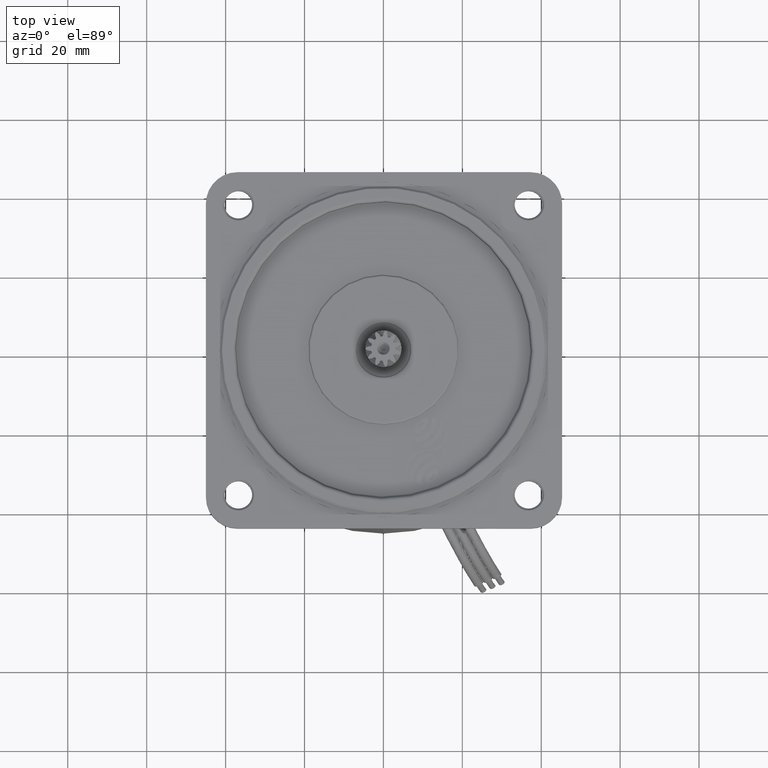
[diagram: clean part render]
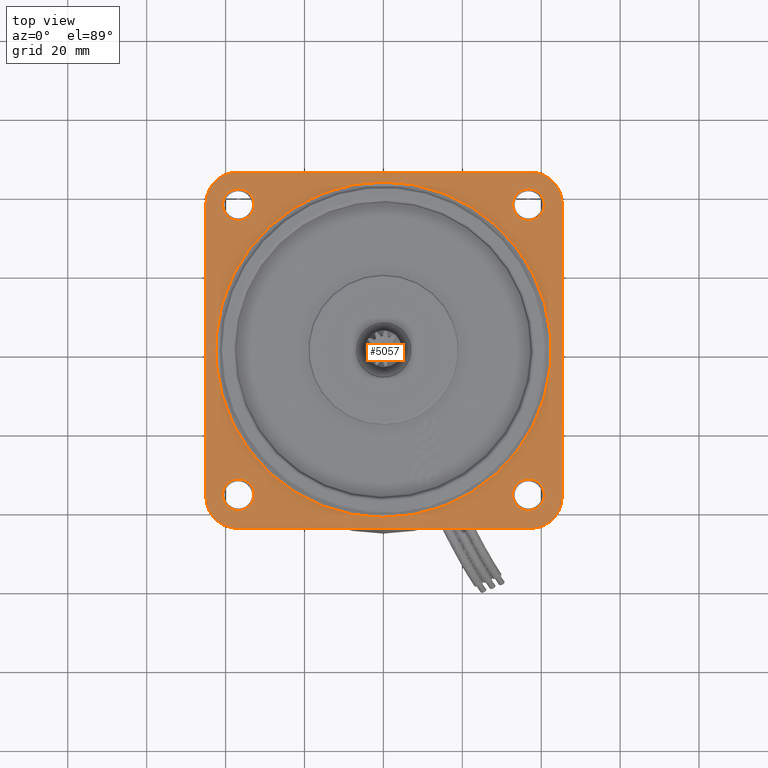
[diagram: same view with one face highlighted and labeled with its STEP entity id]
A machine part, top view. The second image highlights one B-rep face of the part: STEP entity #5057.
In plain terms, the highlighted planar face has unit normal (-0, -0, -1).
Its self-contained STEP definition (entity closure, byte-faithful):
#278 = AXIS2_PLACEMENT_3D ( 'NONE', #332, #331, #321 ) ;
#292 = PLANE ( 'NONE',  #278 ) ;
#313 = CARTESIAN_POINT ( 'NONE',  ( 105.0000000000000100, 0.0000000000000000000, 0.0000000000000000000 ) ) ;
#314 = AXIS2_PLACEMENT_3D ( 'NONE', #313, #377, #376 ) ;
#315 = CIRCLE ( 'NONE', #314, 42.50000000000000700 ) ;
#316 = DIRECTION ( 'NONE',  ( 0.0000000000000000000, 0.0000000000000000000, 1.000000000000000000 ) ) ;
#317 = DIRECTION ( 'NONE',  ( -1.000000000000000000, -0.0000000000000000000, 0.0000000000000000000 ) ) ;
#318 = CARTESIAN_POINT ( 'NONE',  ( 105.0000000000000100, -36.76955262170019300, 36.76955262170074000 ) ) ;
#319 = AXIS2_PLACEMENT_3D ( 'NONE', #318, #317, #316 ) ;
#321 = DIRECTION ( 'NONE',  ( 0.0000000000000000000, 0.0000000000000000000, 1.000000000000000000 ) ) ;
#323 = CIRCLE ( 'NONE', #354, 8.000000000000000000 ) ;
#324 = CIRCLE ( 'NONE', #319, 4.000000000000017800 ) ;
#325 = FACE_OUTER_BOUND ( 'NONE', #5141, .T. ) ;
#326 = FACE_BOUND ( 'NONE', #5167, .T. ) ;
#331 = DIRECTION ( 'NONE',  ( -1.000000000000000000, -0.0000000000000000000, 0.0000000000000000000 ) ) ;
#332 = CARTESIAN_POINT ( 'NONE',  ( 105.0000000000000100, -37.00000000000000000, 37.00000000000000700 ) ) ;
#334 = FACE_BOUND ( 'NONE', #5181, .T. ) ;
#335 = FACE_BOUND ( 'NONE', #5060, .T. ) ;
#340 = FACE_BOUND ( 'NONE', #5082, .T. ) ;
#342 = FACE_BOUND ( 'NONE', #5075, .T. ) ;
#351 = DIRECTION ( 'NONE',  ( 0.0000000000000000000, 0.0000000000000000000, 1.000000000000000000 ) ) ;
#352 = DIRECTION ( 'NONE',  ( 1.000000000000000000, 0.0000000000000000000, -0.0000000000000000000 ) ) ;
#353 = CARTESIAN_POINT ( 'NONE',  ( 105.0000000000000100, 37.29999999999998300, 37.00000000000000700 ) ) ;
#354 = AXIS2_PLACEMENT_3D ( 'NONE', #353, #352, #351 ) ;
#358 = CARTESIAN_POINT ( 'NONE',  ( 105.0000000000000100, 45.29999999999999000, -37.29999999999998300 ) ) ;
#361 = CARTESIAN_POINT ( 'NONE',  ( 105.0000000000000100, 37.29999999999998300, 45.00000000000000700 ) ) ;
#363 = CARTESIAN_POINT ( 'NONE',  ( 105.0000000000000100, 45.29999999999998300, 37.00000000000000700 ) ) ;
#376 = DIRECTION ( 'NONE',  ( 0.0000000000000000000, 0.0000000000000000000, -1.000000000000000000 ) ) ;
#377 = DIRECTION ( 'NONE',  ( 1.000000000000000000, 0.0000000000000000000, 0.0000000000000000000 ) ) ;
#385 = DIRECTION ( 'NONE',  ( 0.0000000000000000000, 0.0000000000000000000, 1.000000000000000000 ) ) ;
#386 = DIRECTION ( 'NONE',  ( 1.000000000000000000, 0.0000000000000000000, -0.0000000000000000000 ) ) ;
#387 = CARTESIAN_POINT ( 'NONE',  ( 105.0000000000000100, 37.29999999999998300, -37.29999999999998300 ) ) ;
#393 = DIRECTION ( 'NONE',  ( -0.0000000000000000000, -9.339022750884561700E-017, 1.000000000000000000 ) ) ;
#394 = VECTOR ( 'NONE', #393, 1000.000000000000000 ) ;
#395 = CARTESIAN_POINT ( 'NONE',  ( 105.0000000000000100, 45.29999999999998300, 37.00000000000000700 ) ) ;
#399 = AXIS2_PLACEMENT_3D ( 'NONE', #387, #386, #385 ) ;
#400 = LINE ( 'NONE', #395, #394 ) ;
#401 = CIRCLE ( 'NONE', #399, 8.000000000000003600 ) ;
#442 = DIRECTION ( 'NONE',  ( 0.0000000000000000000, 0.0000000000000000000, 1.000000000000000000 ) ) ;
#443 = DIRECTION ( 'NONE',  ( -1.000000000000000000, -0.0000000000000000000, 0.0000000000000000000 ) ) ;
#444 = AXIS2_PLACEMENT_3D ( 'NONE', #460, #443, #442 ) ;
#445 = CIRCLE ( 'NONE', #444, 4.000000000000017800 ) ;
#448 = DIRECTION ( 'NONE',  ( 0.0000000000000000000, 0.0000000000000000000, 1.000000000000000000 ) ) ;
#449 = DIRECTION ( 'NONE',  ( -1.000000000000000000, -0.0000000000000000000, 0.0000000000000000000 ) ) ;
#453 = AXIS2_PLACEMENT_3D ( 'NONE', #467, #449, #448 ) ;
#454 = DIRECTION ( 'NONE',  ( 0.0000000000000000000, 0.0000000000000000000, 1.000000000000000000 ) ) ;
#455 = DIRECTION ( 'NONE',  ( -1.000000000000000000, -0.0000000000000000000, 0.0000000000000000000 ) ) ;
#456 = CARTESIAN_POINT ( 'NONE',  ( 105.0000000000000100, 36.76955262170085300, 36.76955262170007200 ) ) ;
#457 = AXIS2_PLACEMENT_3D ( 'NONE', #456, #455, #454 ) ;
#458 = CIRCLE ( 'NONE', #457, 3.999999999999989800 ) ;
#460 = CARTESIAN_POINT ( 'NONE',  ( 105.0000000000000100, -36.76955262170060500, -36.76955262170033500 ) ) ;
#466 = CIRCLE ( 'NONE', #453, 4.000000000000017800 ) ;
#467 = CARTESIAN_POINT ( 'NONE',  ( 105.0000000000000100, 36.76955262170046300, -36.76955262170046300 ) ) ;
#5056 = ORIENTED_EDGE ( 'NONE', *, *, #5070, .F. ) ;
#5057 = ADVANCED_FACE ( 'NONE', ( #340, #342, #335, #326, #334, #325 ), #292, .F. ) ;
#5060 = EDGE_LOOP ( 'NONE', ( #17641, #5164 ) ) ;
#5062 = EDGE_CURVE ( 'NONE', #17480, #17476, #324, .T. ) ;
#5065 = ORIENTED_EDGE ( 'NONE', *, *, #17217, .F. ) ;
#5066 = ORIENTED_EDGE ( 'NONE', *, *, #5062, .T. ) ;
#5070 = EDGE_CURVE ( 'NONE', #17213, #17243, #315, .T. ) ;
#5073 = ORIENTED_EDGE ( 'NONE', *, *, #17507, .T. ) ;
#5075 = EDGE_LOOP ( 'NONE', ( #5073, #5066 ) ) ;
#5082 = EDGE_LOOP ( 'NONE', ( #5056, #5065 ) ) ;
#5090 = VERTEX_POINT ( 'NONE', #363 ) ;
#5096 = EDGE_CURVE ( 'NONE', #5090, #5105, #323, .T. ) ;
#5105 = VERTEX_POINT ( 'NONE', #361 ) ;
#5110 = VERTEX_POINT ( 'NONE', #358 ) ;
#5117 = EDGE_CURVE ( 'NONE', #5110, #5090, #400, .T. ) ;
#5121 = EDGE_CURVE ( 'NONE', #17750, #5110, #401, .T. ) ;
#5141 = EDGE_LOOP ( 'NONE', ( #5184, #5144, #5142, #5183, #5175, #5153, #5146, #5158 ) ) ;
#5142 = ORIENTED_EDGE ( 'NONE', *, *, #17693, .T. ) ;
#5144 = ORIENTED_EDGE ( 'NONE', *, *, #17735, .T. ) ;
#5146 = ORIENTED_EDGE ( 'NONE', *, *, #5096, .T. ) ;
#5153 = ORIENTED_EDGE ( 'NONE', *, *, #5117, .T. ) ;
#5158 = ORIENTED_EDGE ( 'NONE', *, *, #17756, .T. ) ;
#5164 = ORIENTED_EDGE ( 'NONE', *, *, #5168, .T. ) ;
#5167 = EDGE_LOOP ( 'NONE', ( #5177, #5180 ) ) ;
#5168 = EDGE_CURVE ( 'NONE', #17407, #17413, #458, .T. ) ;
#5170 = EDGE_CURVE ( 'NONE', #17266, #17276, #466, .T. ) ;
#5173 = EDGE_CURVE ( 'NONE', #17337, #17443, #445, .T. ) ;
#5175 = ORIENTED_EDGE ( 'NONE', *, *, #5121, .T. ) ;
#5177 = ORIENTED_EDGE ( 'NONE', *, *, #17467, .T. ) ;
#5178 = ORIENTED_EDGE ( 'NONE', *, *, #5170, .T. ) ;
#5180 = ORIENTED_EDGE ( 'NONE', *, *, #5173, .T. ) ;
#5181 = EDGE_LOOP ( 'NONE', ( #5182, #5178 ) ) ;
#5182 = ORIENTED_EDGE ( 'NONE', *, *, #17265, .T. ) ;
#5183 = ORIENTED_EDGE ( 'NONE', *, *, #17753, .T. ) ;
#5184 = ORIENTED_EDGE ( 'NONE', *, *, #17706, .T. ) ;
#10237 = CIRCLE ( 'NONE', #10685, 4.000000000000017800 ) ;
#10683 = CARTESIAN_POINT ( 'NONE',  ( 105.0000000000000100, -36.76955262170060500, -36.76955262170033500 ) ) ;
#10685 = AXIS2_PLACEMENT_3D ( 'NONE', #10683, #11622, #11845 ) ;
#11324 = CARTESIAN_POINT ( 'NONE',  ( 105.0000000000000100, 0.0000000000000000000, -42.50000000000000700 ) ) ;
#11622 = DIRECTION ( 'NONE',  ( -1.000000000000000000, -0.0000000000000000000, 0.0000000000000000000 ) ) ;
#11634 = DIRECTION ( 'NONE',  ( 0.0000000000000000000, 0.0000000000000000000, -1.000000000000000000 ) ) ;
#11635 = DIRECTION ( 'NONE',  ( 1.000000000000000000, 0.0000000000000000000, 0.0000000000000000000 ) ) ;
#11636 = CARTESIAN_POINT ( 'NONE',  ( 105.0000000000000100, 0.0000000000000000000, 0.0000000000000000000 ) ) ;
#11637 = AXIS2_PLACEMENT_3D ( 'NONE', #11636, #11635, #11634 ) ;
#11647 = CIRCLE ( 'NONE', #11637, 42.50000000000000700 ) ;
#11713 = CARTESIAN_POINT ( 'NONE',  ( 105.0000000000000100, 5.204748896376252500E-015, 42.50000000000000700 ) ) ;
#11722 = DIRECTION ( 'NONE',  ( 0.0000000000000000000, 0.0000000000000000000, 1.000000000000000000 ) ) ;
#11723 = AXIS2_PLACEMENT_3D ( 'NONE', #11735, #11726, #11722 ) ;
#11726 = DIRECTION ( 'NONE',  ( -1.000000000000000000, -0.0000000000000000000, 0.0000000000000000000 ) ) ;
#11728 = CARTESIAN_POINT ( 'NONE',  ( 105.0000000000000100, 36.76955262170046300, -32.76955262170044800 ) ) ;
#11731 = CIRCLE ( 'NONE', #11723, 4.000000000000017800 ) ;
#11735 = CARTESIAN_POINT ( 'NONE',  ( 105.0000000000000100, 36.76955262170046300, -36.76955262170046300 ) ) ;
#11768 = CARTESIAN_POINT ( 'NONE',  ( 105.0000000000000100, 36.76955262170046300, -40.76955262170048400 ) ) ;
#11819 = CARTESIAN_POINT ( 'NONE',  ( 105.0000000000000100, -36.76955262170060500, -32.76955262170031300 ) ) ;
#11845 = DIRECTION ( 'NONE',  ( 0.0000000000000000000, 0.0000000000000000000, 1.000000000000000000 ) ) ;
#12000 = DIRECTION ( 'NONE',  ( 0.0000000000000000000, 0.0000000000000000000, 1.000000000000000000 ) ) ;
#12001 = DIRECTION ( 'NONE',  ( -1.000000000000000000, -0.0000000000000000000, 0.0000000000000000000 ) ) ;
#12002 = AXIS2_PLACEMENT_3D ( 'NONE', #12004, #12001, #12000 ) ;
#12004 = CARTESIAN_POINT ( 'NONE',  ( 105.0000000000000100, 36.76955262170085300, 36.76955262170007200 ) ) ;
#12014 = CARTESIAN_POINT ( 'NONE',  ( 105.0000000000000100, 36.76955262170085300, 32.76955262170007900 ) ) ;
#12015 = CIRCLE ( 'NONE', #12002, 3.999999999999989800 ) ;
#12016 = CARTESIAN_POINT ( 'NONE',  ( 105.0000000000000100, 36.76955262170085300, 40.76955262170005800 ) ) ;
#12068 = CARTESIAN_POINT ( 'NONE',  ( 105.0000000000000100, -36.76955262170060500, -40.76955262170034900 ) ) ;
#12142 = CIRCLE ( 'NONE', #12213, 4.000000000000017800 ) ;
#12145 = CARTESIAN_POINT ( 'NONE',  ( 105.0000000000000100, -36.76955262170019300, 32.76955262170071800 ) ) ;
#12152 = CARTESIAN_POINT ( 'NONE',  ( 105.0000000000000100, -36.76955262170019300, 40.76955262170075400 ) ) ;
#12202 = DIRECTION ( 'NONE',  ( 0.0000000000000000000, 0.0000000000000000000, 1.000000000000000000 ) ) ;
#12203 = DIRECTION ( 'NONE',  ( -1.000000000000000000, -0.0000000000000000000, 0.0000000000000000000 ) ) ;
#12204 = CARTESIAN_POINT ( 'NONE',  ( 105.0000000000000100, -36.76955262170019300, 36.76955262170074000 ) ) ;
#12213 = AXIS2_PLACEMENT_3D ( 'NONE', #12204, #12203, #12202 ) ;
#13623 = DIRECTION ( 'NONE',  ( 0.0000000000000000000, 0.0000000000000000000, -1.000000000000000000 ) ) ;
#13624 = DIRECTION ( 'NONE',  ( 1.000000000000000000, 0.0000000000000000000, 0.0000000000000000000 ) ) ;
#13625 = AXIS2_PLACEMENT_3D ( 'NONE', #13628, #13624, #13623 ) ;
#13626 = CIRCLE ( 'NONE', #13625, 8.000000000000000000 ) ;
#13628 = CARTESIAN_POINT ( 'NONE',  ( 105.0000000000000100, -37.00000000000000000, -37.29999999999998300 ) ) ;
#13638 = CARTESIAN_POINT ( 'NONE',  ( 105.0000000000000100, -45.00000000000000000, -37.29999999999998300 ) ) ;
#13659 = CARTESIAN_POINT ( 'NONE',  ( 105.0000000000000100, -37.00000000000000000, 37.00000000000000700 ) ) ;
#13660 = CIRCLE ( 'NONE', #13829, 8.000000000000000000 ) ;
#13661 = DIRECTION ( 'NONE',  ( 1.000000000000000000, 0.0000000000000000000, -0.0000000000000000000 ) ) ;
#13823 = CARTESIAN_POINT ( 'NONE',  ( 105.0000000000000100, -45.00000000000000000, 36.99999999999995000 ) ) ;
#13824 = CARTESIAN_POINT ( 'NONE',  ( 105.0000000000000100, -36.99999999999994300, 45.00000000000000700 ) ) ;
#13828 = DIRECTION ( 'NONE',  ( 0.0000000000000000000, 0.0000000000000000000, 1.000000000000000000 ) ) ;
#13829 = AXIS2_PLACEMENT_3D ( 'NONE', #13659, #13661, #13828 ) ;
#13953 = CARTESIAN_POINT ( 'NONE',  ( 105.0000000000000100, -37.00000000000000000, -45.29999999999998300 ) ) ;
#13954 = CARTESIAN_POINT ( 'NONE',  ( 105.0000000000000100, 37.29999999999998300, -45.29999999999998300 ) ) ;
#13957 = CARTESIAN_POINT ( 'NONE',  ( 105.0000000000000100, -45.00000000000000000, 36.99999999999995000 ) ) ;
#13985 = DIRECTION ( 'NONE',  ( 0.0000000000000000000, 1.000000000000000000, 0.0000000000000000000 ) ) ;
#13986 = CARTESIAN_POINT ( 'NONE',  ( 105.0000000000000100, -37.00000000000000000, -45.29999999999998300 ) ) ;
#13987 = LINE ( 'NONE', #13986, #14156 ) ;
#13989 = DIRECTION ( 'NONE',  ( 0.0000000000000000000, 0.0000000000000000000, -1.000000000000000000 ) ) ;
#13990 = VECTOR ( 'NONE', #13989, 1000.000000000000000 ) ;
#13992 = LINE ( 'NONE', #13957, #13990 ) ;
#14144 = DIRECTION ( 'NONE',  ( -0.0000000000000000000, -1.000000000000000000, -0.0000000000000000000 ) ) ;
#14145 = VECTOR ( 'NONE', #14144, 1000.000000000000000 ) ;
#14146 = CARTESIAN_POINT ( 'NONE',  ( 105.0000000000000100, -36.99999999999994300, 45.00000000000000700 ) ) ;
#14148 = LINE ( 'NONE', #14146, #14145 ) ;
#14156 = VECTOR ( 'NONE', #13985, 1000.000000000000000 ) ;
#17213 = VERTEX_POINT ( 'NONE', #11324 ) ;
#17217 = EDGE_CURVE ( 'NONE', #17243, #17213, #11647, .T. ) ;
#17243 = VERTEX_POINT ( 'NONE', #11713 ) ;
#17265 = EDGE_CURVE ( 'NONE', #17276, #17266, #11731, .T. ) ;
#17266 = VERTEX_POINT ( 'NONE', #11728 ) ;
#17276 = VERTEX_POINT ( 'NONE', #11768 ) ;
#17337 = VERTEX_POINT ( 'NONE', #11819 ) ;
#17407 = VERTEX_POINT ( 'NONE', #12016 ) ;
#17412 = EDGE_CURVE ( 'NONE', #17413, #17407, #12015, .T. ) ;
#17413 = VERTEX_POINT ( 'NONE', #12014 ) ;
#17443 = VERTEX_POINT ( 'NONE', #12068 ) ;
#17467 = EDGE_CURVE ( 'NONE', #17443, #17337, #10237, .T. ) ;
#17476 = VERTEX_POINT ( 'NONE', #12145 ) ;
#17480 = VERTEX_POINT ( 'NONE', #12152 ) ;
#17507 = EDGE_CURVE ( 'NONE', #17476, #17480, #12142, .T. ) ;
#17641 = ORIENTED_EDGE ( 'NONE', *, *, #17412, .T. ) ;
#17691 = VERTEX_POINT ( 'NONE', #13638 ) ;
#17693 = EDGE_CURVE ( 'NONE', #17691, #17745, #13626, .T. ) ;
#17706 = EDGE_CURVE ( 'NONE', #17712, #17713, #13660, .T. ) ;
#17712 = VERTEX_POINT ( 'NONE', #13824 ) ;
#17713 = VERTEX_POINT ( 'NONE', #13823 ) ;
#17735 = EDGE_CURVE ( 'NONE', #17713, #17691, #13992, .T. ) ;
#17745 = VERTEX_POINT ( 'NONE', #13953 ) ;
#17750 = VERTEX_POINT ( 'NONE', #13954 ) ;
#17753 = EDGE_CURVE ( 'NONE', #17745, #17750, #13987, .T. ) ;
#17756 = EDGE_CURVE ( 'NONE', #5105, #17712, #14148, .T. ) ;